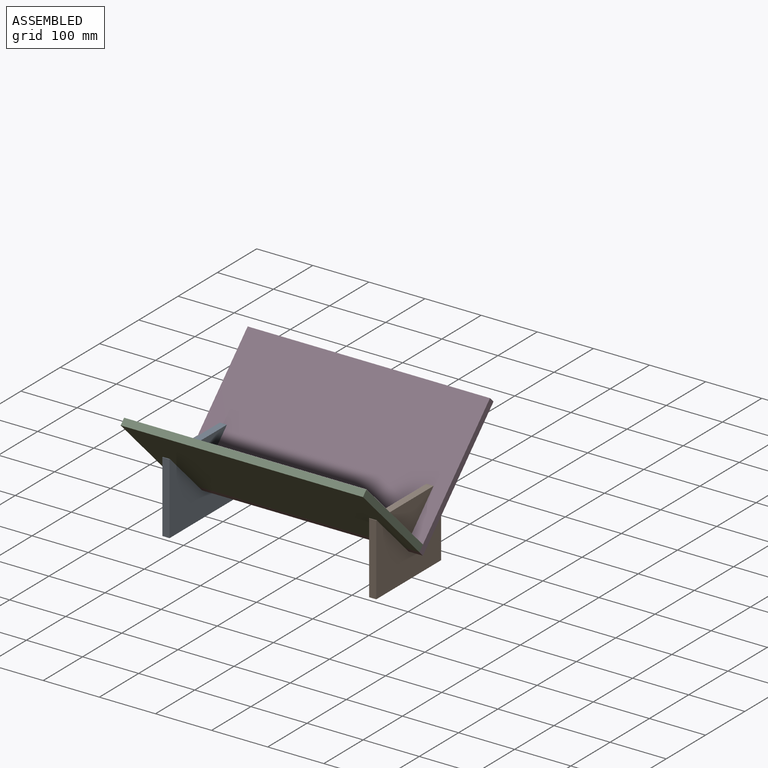
[diagram: assembled view]
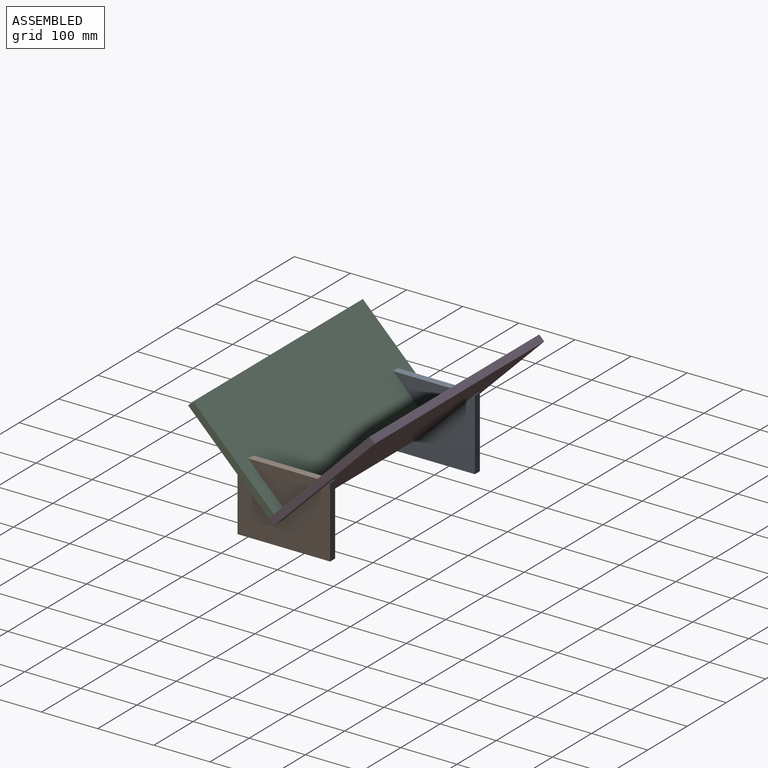
[diagram: assembled view, second angle]
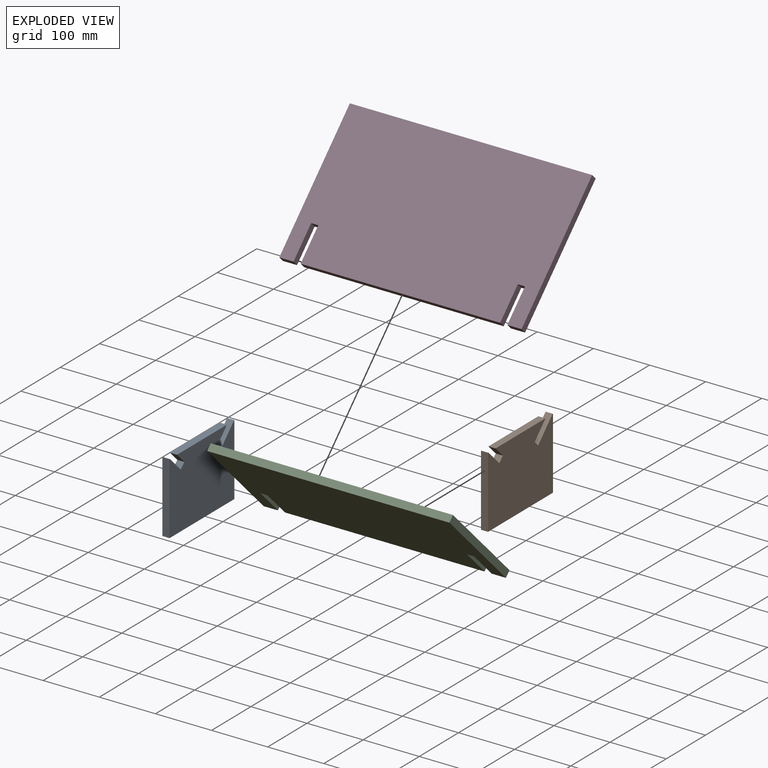
[diagram: exploded view]
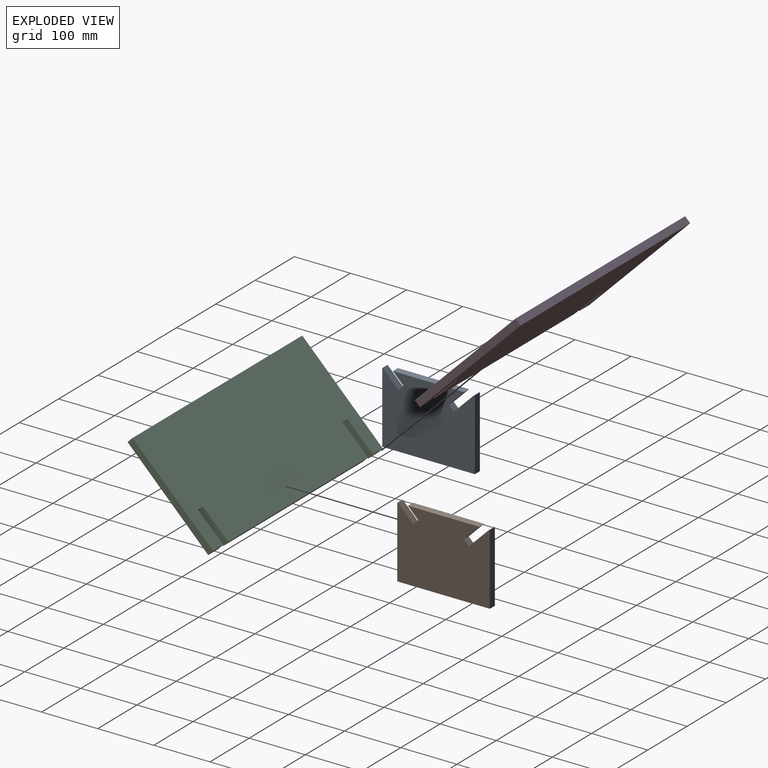
[diagram: exploded view, second angle]
ASSEMBLY  parts=4 mates=3
PART A: 14 faces, bbox 12.7x165.1x127 mm
  f0: plane 12.7x8.98mm, normal (0,0.71,0.71), area 161.3mm2, adj f1,f11,f12,f13
  f1: plane 27.58x27.58mm, normal (0,0.71,-0.71), area 495.3mm2, adj f0,f2,f12,f13
  f2: plane 127x12.7mm, normal (0,0,1), area 1612.9mm2, adj f1,f3,f12,f13
  f3: plane 18.6x18.6mm, normal (0,-0.71,-0.71), area 334mm2, adj f2,f4,f12,f13
  f4: plane 12.7x8.98mm, normal (0,-0.71,0.71), area 161.3mm2, adj f3,f5,f12,f13
  f5: plane 27.58x27.58mm, normal (0,0.71,0.71), area 495.3mm2, adj f4,f6,f12,f13
  f6: plane 12.7x1.09mm, normal (0,0,1), area 13.8mm2, adj f5,f7,f12,f13
  f7: plane 127x12.7mm, normal (0,-1,0), area 1612.9mm2, adj f6,f8,f12,f13
  f8: plane 165.1x12.7mm, normal (0,0,-1), area 2096.8mm2, adj f7,f9,f12,f13
  f9: plane 127x12.7mm, normal (0,1,0), area 1612.9mm2, adj f8,f10,f12,f13
  f10: plane 12.7x1.09mm, normal (0,0,1), area 13.8mm2, adj f9,f11,f12,f13
  f11: plane 36.56x36.56mm, normal (0,-0.71,0.71), area 656.6mm2, adj f0,f10,f12,f13
  f12: plane 165.1x127mm, normal (1,0,0), area 19977mm2, adj f0,f1,f2,f3,f4,f5,f6,f7
  f13: plane 165.1x127mm, normal (-1,0,0), area 19977mm2, adj f0,f1,f2,f3,f4,f5,f6,f7
PART B: same geometry as A
PART C: 14 faces, bbox 431.8x12.7x203.2 mm
  f0: plane 355.6x12.7mm, normal (0,0,-1), area 4516.1mm2, adj f1,f11,f12,f13
  f1: plane 63.5x12.7mm, normal (1,0,0), area 806.5mm2, adj f0,f2,f12,f13
  f2: plane 12.7x12.7mm, normal (0,0,-1), area 161.3mm2, adj f1,f3,f12,f13
  f3: plane 63.5x12.7mm, normal (-1,0,0), area 806.5mm2, adj f2,f4,f12,f13
  f4: plane 25.4x12.7mm, normal (0,0,-1), area 322.6mm2, adj f3,f5,f12,f13
  f5: plane 203.2x12.7mm, normal (1,0,0), area 2580.6mm2, adj f4,f6,f12,f13
  f6: plane 431.8x12.7mm, normal (0,0,1), area 5483.9mm2, adj f5,f7,f12,f13
  f7: plane 203.2x12.7mm, normal (-1,0,0), area 2580.6mm2, adj f6,f8,f12,f13
  f8: plane 25.4x12.7mm, normal (0,0,-1), area 322.6mm2, adj f7,f9,f12,f13
  f9: plane 63.5x12.7mm, normal (1,0,0), area 806.5mm2, adj f8,f10,f12,f13
  f10: plane 12.7x12.7mm, normal (0,0,-1), area 161.3mm2, adj f9,f11,f12,f13
  f11: plane 63.5x12.7mm, normal (-1,0,0), area 806.5mm2, adj f0,f10,f12,f13
  f12: plane 431.8x203.2mm, normal (0,-1,0), area 86128.9mm2, adj f0,f1,f2,f3,f4,f5,f6,f7
  f13: plane 431.8x203.2mm, normal (0,1,0), area 86128.9mm2, adj f0,f1,f2,f3,f4,f5,f6,f7
PART D: 14 faces, bbox 431.8x12.7x254 mm
  f0: plane 355.6x12.7mm, normal (0,0,-1), area 4516.1mm2, adj f1,f11,f12,f13
  f1: plane 63.5x12.7mm, normal (1,0,0), area 806.5mm2, adj f0,f2,f12,f13
  f2: plane 12.7x12.7mm, normal (0,0,-1), area 161.3mm2, adj f1,f3,f12,f13
  f3: plane 63.5x12.7mm, normal (-1,0,0), area 806.5mm2, adj f2,f4,f12,f13
  f4: plane 25.4x12.7mm, normal (0,0,-1), area 322.6mm2, adj f3,f5,f12,f13
  f5: plane 254x12.7mm, normal (1,0,0), area 3225.8mm2, adj f4,f6,f12,f13
  f6: plane 431.8x12.7mm, normal (0,0,1), area 5483.9mm2, adj f5,f7,f12,f13
  f7: plane 254x12.7mm, normal (-1,0,0), area 3225.8mm2, adj f6,f8,f12,f13
  f8: plane 25.4x12.7mm, normal (0,0,-1), area 322.6mm2, adj f7,f9,f12,f13
  f9: plane 63.5x12.7mm, normal (1,0,0), area 806.5mm2, adj f8,f10,f12,f13
  f10: plane 12.7x12.7mm, normal (0,0,-1), area 161.3mm2, adj f9,f11,f12,f13
  f11: plane 63.5x12.7mm, normal (-1,0,0), area 806.5mm2, adj f0,f10,f12,f13
  f12: plane 431.8x254mm, normal (0,-1,0), area 108064.3mm2, adj f0,f1,f2,f3,f4,f5,f6,f7
  f13: plane 431.8x254mm, normal (0,1,0), area 108064.3mm2, adj f0,f1,f2,f3,f4,f5,f6,f7
PLACE A t=(173.7,175.38,-156.12)mm
PLACE B t=(542,175.38,-156.12)mm
PLACE C rot(axis=(1,0,0),45deg) t=(357.85,99.05,-88.77)mm
PLACE D rot(axis=(-1,0,0),45deg) t=(357.85,260.69,-79.79)mm
MATE fastened D.f2 <-> B.f0  axis (0,-0.71,-0.71) through (542,215.79,-124.69)mm
MATE fastened C.f10 <-> A.f4  axis (0,0.71,-0.71) through (173.7,125.99,-115.71)mm
MATE fastened D.f10 <-> A.f0  axis (0,-0.71,-0.71) through (173.7,215.79,-124.69)mm
